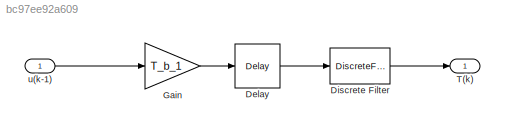
MODEL slx_bc97ee92a609
KIND model
CONFIG AbsTol = auto
CONFIG EnableMultiTasking = off
CONFIG FixedStep = auto
CONFIG MaxStep = auto
CONFIG MinStep = auto
CONFIG RelTol = 1e-3
CONFIG SampleTimeConstraint = Unconstrained
CONFIG SolverName = FixedStepDiscrete
CONFIG StartTime = 0.0
CONFIG StopTime = 10.0
BLOCK [Delay] Delay
  DelayLength = 1
  InputPortMap = u0
  SampleTime = 1
BLOCK [DiscreteFilter] Discrete Filter
  Denominator = [1 -T_a_1]
  InputPortMap = u0
BLOCK [Gain] Gain
  Gain = T_b_1
BLOCK [Outport] T(k)
BLOCK [Inport] u(k-1)
LINE Delay:1 -> Discrete Filter:1
LINE Discrete Filter:1 -> T(k):1
LINE Gain:1 -> Delay:1
LINE u(k-1):1 -> Gain:1
